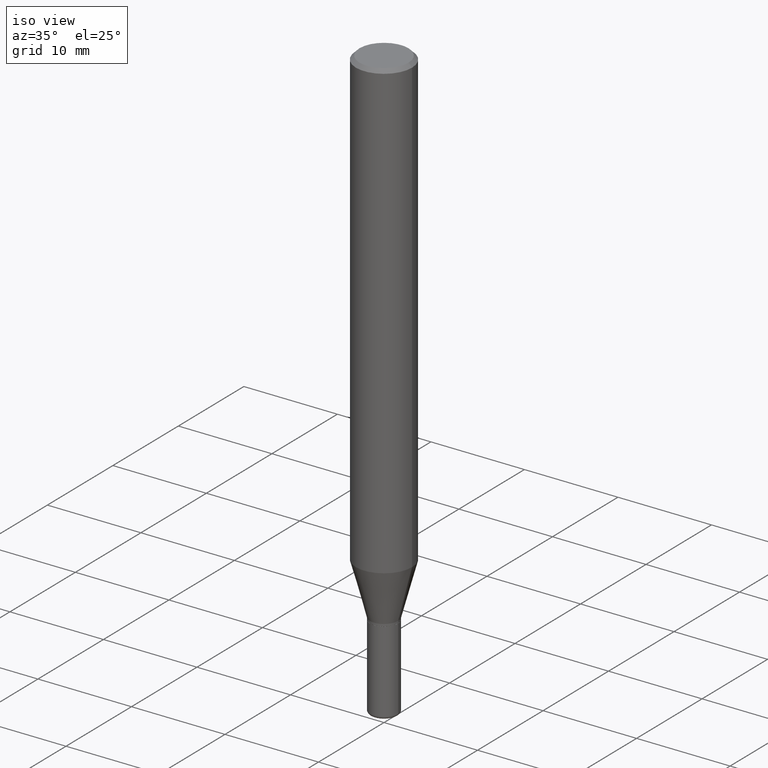
[diagram: clean part render]
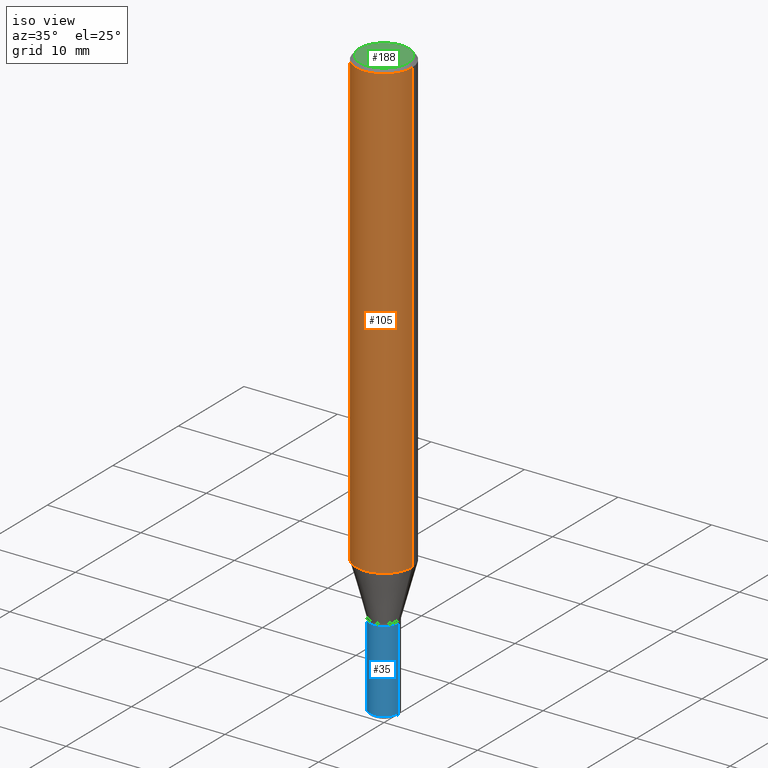
[diagram: same view with three faces highlighted in distinct colors, each labeled with its STEP entity id]
A machine part, iso view with three faces highlighted in distinct colors.
Their STEP definitions:

[orange] entity #105 — the highlighted cylindrical surface (edge-blend (fillet) strip) has radius 2.9997 mm, axis along (-0, 0, 1).
#3 = DIRECTION ( 'NONE',  ( 1.000000000000000000, -6.982962677686265133E-15, 0.000000000000000000 ) ) ;
#30 = CARTESIAN_POINT ( 'NONE',  ( 0.1180999999999999966, -7.512000309050311391E-15, -1.915322399813057963 ) ) ;
#43 = DIRECTION ( 'NONE',  ( -2.445468806185136597E-29, 3.491481338843145583E-15, 1.000000000000000000 ) ) ;
#53 = AXIS2_PLACEMENT_3D ( 'NONE', #181, #274, #426 ) ;
#75 = AXIS2_PLACEMENT_3D ( 'NONE', #292, #43, #3 ) ;
#97 = CARTESIAN_POINT ( 'NONE',  ( 0.1180999999999999966, -8.246878922347480654E-16, 5.758764772215000440E-30 ) ) ;
#105 = ADVANCED_FACE ( 'NONE', ( #497 ), #353, .T. ) ;
#127 = VERTEX_POINT ( 'NONE', #175 ) ;
#128 = CIRCLE ( 'NONE', #424, 0.1180999999999999966 ) ;
#142 = EDGE_CURVE ( 'NONE', #319, #322, #311, .T. ) ;
#158 = LINE ( 'NONE', #445, #267 ) ;
#167 = DIRECTION ( 'NONE',  ( -2.445468806185136877E-29, 3.491481338843145188E-15, 1.000000000000000000 ) ) ;
#175 = CARTESIAN_POINT ( 'NONE',  ( -0.1180999999999999966, -2.530691347516425921E-15, -0.01499999999999995781 ) ) ;
#181 = CARTESIAN_POINT ( 'NONE',  ( 0.000000000000000000, 0.000000000000000000, 0.000000000000000000 ) ) ;
#185 = CARTESIAN_POINT ( 'NONE',  ( 0.1180999999999999966, -8.770601123173951446E-16, -0.01499999999999995781 ) ) ;
#197 = ORIENTED_EDGE ( 'NONE', *, *, #449, .F. ) ;
#209 = CARTESIAN_POINT ( 'NONE',  ( 3.668203209277694140E-31, -5.237222008264703607E-17, -0.01499999999999995781 ) ) ;
#237 = VECTOR ( 'NONE', #421, 39.37007874015748143 ) ;
#238 = ORIENTED_EDGE ( 'NONE', *, *, #348, .T. ) ;
#254 = ORIENTED_EDGE ( 'NONE', *, *, #142, .T. ) ;
#267 = VECTOR ( 'NONE', #167, 39.37007874015748143 ) ;
#274 = DIRECTION ( 'NONE',  ( -2.445468806185136597E-29, 3.491481338843145583E-15, 1.000000000000000000 ) ) ;
#292 = CARTESIAN_POINT ( 'NONE',  ( 4.683861182530489821E-29, -6.687312416815562340E-15, -1.915322399813057963 ) ) ;
#311 = LINE ( 'NONE', #97, #237 ) ;
#318 = CARTESIAN_POINT ( 'NONE',  ( -0.1180999999999999966, -5.848161445882884932E-15, -1.915322399813057963 ) ) ;
#319 = VERTEX_POINT ( 'NONE', #30 ) ;
#322 = VERTEX_POINT ( 'NONE', #185 ) ;
#327 = VERTEX_POINT ( 'NONE', #318 ) ;
#332 = EDGE_CURVE ( 'NONE', #327, #127, #158, .T. ) ;
#343 = DIRECTION ( 'NONE',  ( 1.000000000000000000, -6.982962677686266711E-15, 0.000000000000000000 ) ) ;
#348 = EDGE_CURVE ( 'NONE', #327, #319, #510, .T. ) ;
#353 = CYLINDRICAL_SURFACE ( 'NONE', #53, 0.1180999999999999966 ) ;
#363 = EDGE_LOOP ( 'NONE', ( #450, #238, #254, #197 ) ) ;
#367 = DIRECTION ( 'NONE',  ( -2.445468806185136597E-29, 3.491481338843145583E-15, 1.000000000000000000 ) ) ;
#421 = DIRECTION ( 'NONE',  ( -2.445468806185136877E-29, 3.491481338843145188E-15, 1.000000000000000000 ) ) ;
#424 = AXIS2_PLACEMENT_3D ( 'NONE', #209, #367, #343 ) ;
#426 = DIRECTION ( 'NONE',  ( 1.000000000000000000, -6.982962677686266711E-15, 4.876176775795936353E-29 ) ) ;
#445 = CARTESIAN_POINT ( 'NONE',  ( -0.1180999999999999966, 8.391509709326782957E-16, -5.809262341591043784E-30 ) ) ;
#449 = EDGE_CURVE ( 'NONE', #127, #322, #128, .T. ) ;
#450 = ORIENTED_EDGE ( 'NONE', *, *, #332, .F. ) ;
#497 = FACE_OUTER_BOUND ( 'NONE', #363, .T. ) ;
#510 = CIRCLE ( 'NONE', #75, 0.1180999999999999966 ) ;

[blue] entity #35 — the highlighted cylindrical surface (edge-blend (fillet) strip) has radius 1.4999 mm, axis along (-0, 0, 1).
#12 = DIRECTION ( 'NONE',  ( 1.000000000000000000, -6.982962677686273021E-15, 0.000000000000000000 ) ) ;
#17 = DIRECTION ( 'NONE',  ( 1.000000000000000000, -6.982962677686266711E-15, 4.876176775795935232E-29 ) ) ;
#33 = DIRECTION ( 'NONE',  ( -2.445468806185136877E-29, 3.491481338843145188E-15, 1.000000000000000000 ) ) ;
#35 = ADVANCED_FACE ( 'NONE', ( #216 ), #491, .T. ) ;
#41 = CARTESIAN_POINT ( 'NONE',  ( 5.247242417431447608E-29, -7.491671508755737816E-15, -2.145700000000000163 ) ) ;
#44 = CARTESIAN_POINT ( 'NONE',  ( 0.05905000000000033833, -9.099847813426891590E-15, -2.488199999999999967 ) ) ;
#72 = CARTESIAN_POINT ( 'NONE',  ( -0.05905000000000017180, 4.195754854663403804E-16, -2.904631170795530300E-30 ) ) ;
#77 = ORIENTED_EDGE ( 'NONE', *, *, #257, .F. ) ;
#101 = VECTOR ( 'NONE', #288, 39.37007874015748143 ) ;
#104 = EDGE_CURVE ( 'NONE', #443, #232, #428, .T. ) ;
#111 = VERTEX_POINT ( 'NONE', #346 ) ;
#130 = DIRECTION ( 'NONE',  ( -2.445468806185136597E-29, 3.491481338843145583E-15, 1.000000000000000000 ) ) ;
#143 = CIRCLE ( 'NONE', #447, 0.05904999999999999832 ) ;
#148 = EDGE_LOOP ( 'NONE', ( #77, #336, #478, #234 ) ) ;
#179 = AXIS2_PLACEMENT_3D ( 'NONE', #300, #130, #17 ) ;
#202 = AXIS2_PLACEMENT_3D ( 'NONE', #323, #313, #263 ) ;
#204 = CARTESIAN_POINT ( 'NONE',  ( 0.05905000000000017180, -4.123439461173752653E-16, 2.879382386107508278E-30 ) ) ;
#216 = FACE_OUTER_BOUND ( 'NONE', #148, .T. ) ;
#232 = VERTEX_POINT ( 'NONE', #44 ) ;
#234 = ORIENTED_EDGE ( 'NONE', *, *, #461, .F. ) ;
#243 = LINE ( 'NONE', #72, #337 ) ;
#245 = CARTESIAN_POINT ( 'NONE',  ( -0.05905000000000033833, -7.670012202566284200E-15, -2.488199999999999967 ) ) ;
#257 = EDGE_CURVE ( 'NONE', #443, #371, #243, .T. ) ;
#263 = DIRECTION ( 'NONE',  ( 1.000000000000000000, -6.982962677686265922E-15, 0.000000000000000000 ) ) ;
#288 = DIRECTION ( 'NONE',  ( -2.445468806185136877E-29, 3.491481338843145188E-15, 1.000000000000000000 ) ) ;
#300 = CARTESIAN_POINT ( 'NONE',  ( 0.000000000000000000, 0.000000000000000000, 0.000000000000000000 ) ) ;
#313 = DIRECTION ( 'NONE',  ( -2.445468806185136597E-29, 3.491481338843145583E-15, 1.000000000000000000 ) ) ;
#323 = CARTESIAN_POINT ( 'NONE',  ( 6.084815483549856310E-29, -8.687503867309514303E-15, -2.488199999999999967 ) ) ;
#329 = CARTESIAN_POINT ( 'NONE',  ( -0.05904999999999999832, -7.670012202566285777E-15, -2.145700000000000163 ) ) ;
#331 = DIRECTION ( 'NONE',  ( -2.445468806185136597E-29, 3.491481338843145583E-15, 1.000000000000000000 ) ) ;
#336 = ORIENTED_EDGE ( 'NONE', *, *, #104, .T. ) ;
#337 = VECTOR ( 'NONE', #33, 39.37007874015748143 ) ;
#346 = CARTESIAN_POINT ( 'NONE',  ( 0.05904999999999999832, -7.904015454873111947E-15, -2.145700000000000163 ) ) ;
#371 = VERTEX_POINT ( 'NONE', #329 ) ;
#379 = EDGE_CURVE ( 'NONE', #232, #111, #442, .T. ) ;
#428 = CIRCLE ( 'NONE', #202, 0.05905000000000033833 ) ;
#442 = LINE ( 'NONE', #204, #101 ) ;
#443 = VERTEX_POINT ( 'NONE', #245 ) ;
#447 = AXIS2_PLACEMENT_3D ( 'NONE', #41, #331, #12 ) ;
#461 = EDGE_CURVE ( 'NONE', #371, #111, #143, .T. ) ;
#478 = ORIENTED_EDGE ( 'NONE', *, *, #379, .T. ) ;
#491 = CYLINDRICAL_SURFACE ( 'NONE', #179, 0.05905000000000017180 ) ;

[green] entity #188 — the highlighted planar face has unit normal (0, -0, -1).
#8 = DIRECTION ( 'NONE',  ( -2.445468806185136597E-29, 3.491481338843145583E-15, 1.000000000000000000 ) ) ;
#29 = AXIS2_PLACEMENT_3D ( 'NONE', #50, #8, #161 ) ;
#42 = EDGE_LOOP ( 'NONE', ( #317, #149 ) ) ;
#50 = CARTESIAN_POINT ( 'NONE',  ( 0.000000000000000000, 0.000000000000000000, 0.000000000000000000 ) ) ;
#54 = VERTEX_POINT ( 'NONE', #303 ) ;
#99 = AXIS2_PLACEMENT_3D ( 'NONE', #231, #189, #117 ) ;
#117 = DIRECTION ( 'NONE',  ( -1.000000000000000000, 6.982962677686265922E-15, -4.876176775795935793E-29 ) ) ;
#149 = ORIENTED_EDGE ( 'NONE', *, *, #433, .T. ) ;
#153 = PLANE ( 'NONE',  #99 ) ;
#161 = DIRECTION ( 'NONE',  ( 1.000000000000000000, -6.982962677686265922E-15, 4.876176775795935232E-29 ) ) ;
#180 = CIRCLE ( 'NONE', #190, 0.1031000000000000111 ) ;
#182 = DIRECTION ( 'NONE',  ( -2.445468806185136597E-29, 3.491481338843145583E-15, 1.000000000000000000 ) ) ;
#188 = ADVANCED_FACE ( 'NONE', ( #365 ), #153, .F. ) ;
#189 = DIRECTION ( 'NONE',  ( 2.438088387897960049E-29, -3.491481338843145188E-15, -1.000000000000000000 ) ) ;
#190 = AXIS2_PLACEMENT_3D ( 'NONE', #473, #182, #280 ) ;
#231 = CARTESIAN_POINT ( 'NONE',  ( 7.199434520694541042E-16, 0.1031000000000000111, -3.599717260347282847E-16 ) ) ;
#272 = EDGE_CURVE ( 'NONE', #54, #389, #180, .T. ) ;
#280 = DIRECTION ( 'NONE',  ( 1.000000000000000000, -6.982962677686265922E-15, 4.876176775795935232E-29 ) ) ;
#303 = CARTESIAN_POINT ( 'NONE',  ( -0.1031000000000000111, 7.461295621107775452E-16, -5.126375781645864005E-30 ) ) ;
#317 = ORIENTED_EDGE ( 'NONE', *, *, #272, .T. ) ;
#365 = FACE_OUTER_BOUND ( 'NONE', #42, .T. ) ;
#370 = CARTESIAN_POINT ( 'NONE',  ( 0.1031000000000000111, -7.849571885948548761E-16, 5.261941714946591942E-30 ) ) ;
#389 = VERTEX_POINT ( 'NONE', #370 ) ;
#433 = EDGE_CURVE ( 'NONE', #389, #54, #504, .T. ) ;
#473 = CARTESIAN_POINT ( 'NONE',  ( 0.000000000000000000, 0.000000000000000000, 0.000000000000000000 ) ) ;
#504 = CIRCLE ( 'NONE', #29, 0.1031000000000000111 ) ;